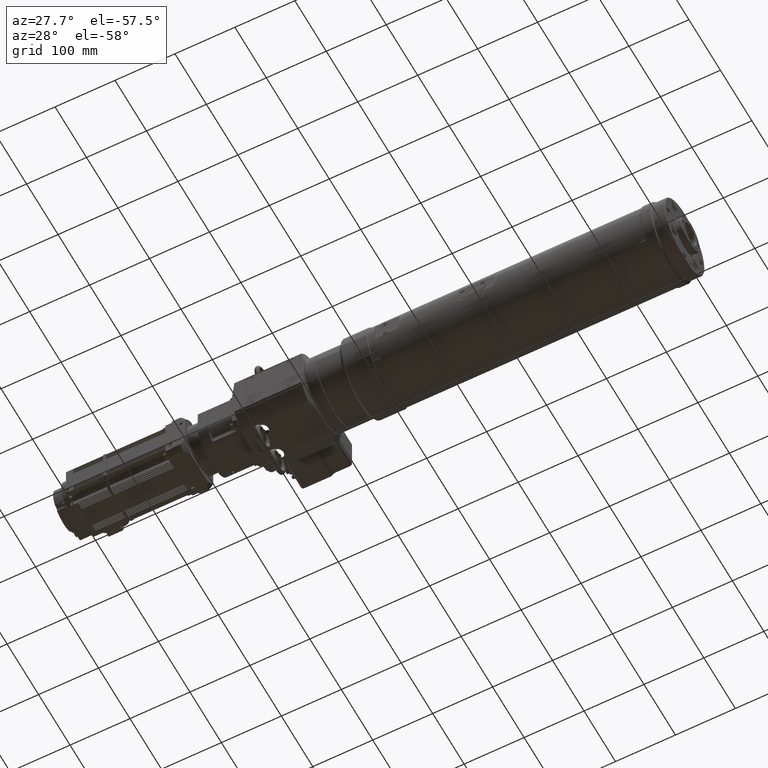
[diagram: clean part render]
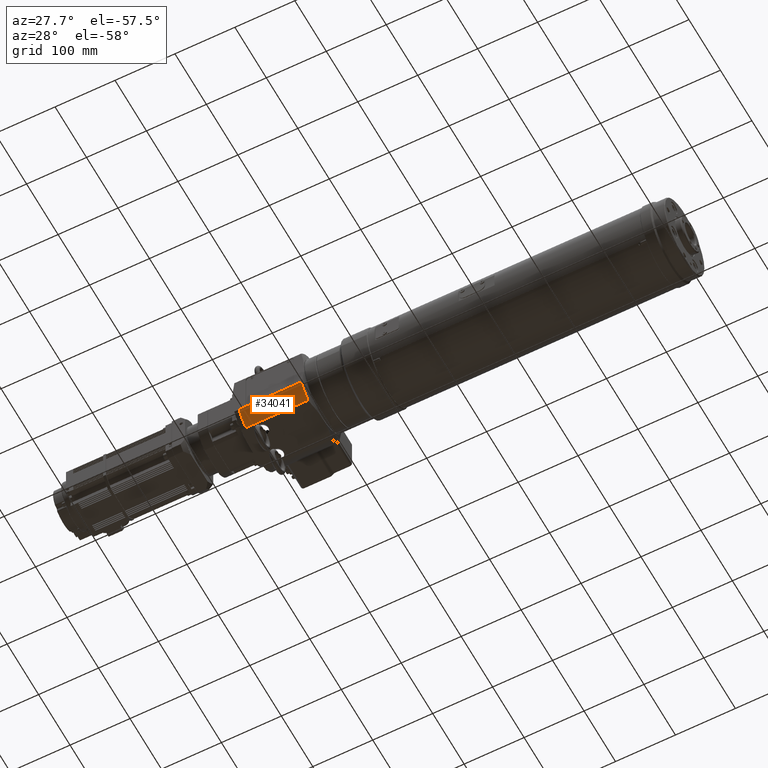
[diagram: same view with one face highlighted and labeled with its STEP entity id]
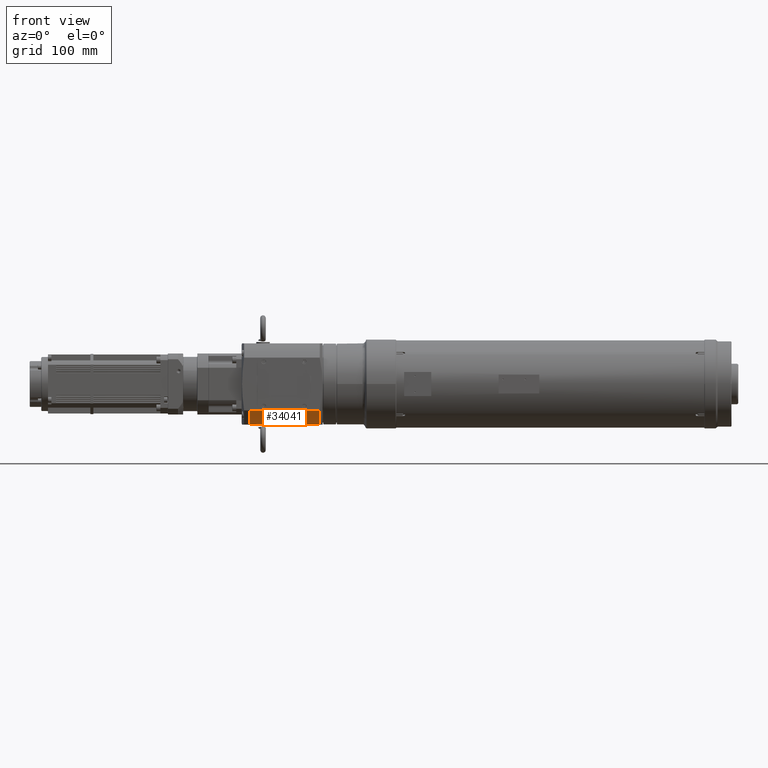
[diagram: same view with one face highlighted and labeled with its STEP entity id]
A machine part, auxiliary view. The second image highlights one B-rep face of the part: STEP entity #34041.
A second angle (front view) of the same face is appended — the face is thin or edge-on in the first view.
In plain terms, the highlighted cylindrical surface (partial cylindrical patch) has radius 71.5 mm, axis along (-1, -0, 0).
Its self-contained STEP definition (entity closure, byte-faithful):
#2684=FACE_OUTER_BOUND('',#4574,.T.);
#4574=EDGE_LOOP('',(#24406,#24407,#24408,#24409));
#6557=CIRCLE('',#36550,71.5000000000078);
#6588=CIRCLE('',#36597,71.5000000000078);
#8399=LINE('',#53532,#11079);
#8400=LINE('',#53535,#11080);
#11079=VECTOR('',#42243,10.);
#11080=VECTOR('',#42246,10.);
#14106=VERTEX_POINT('',#53372);
#14109=VERTEX_POINT('',#53382);
#14158=VERTEX_POINT('',#53531);
#14159=VERTEX_POINT('',#53533);
#17895=EDGE_CURVE('',#14106,#14109,#6557,.T.);
#17936=EDGE_CURVE('',#14106,#14158,#8399,.T.);
#17937=EDGE_CURVE('',#14158,#14159,#6588,.T.);
#17938=EDGE_CURVE('',#14159,#14109,#8400,.T.);
#24406=ORIENTED_EDGE('',*,*,#17936,.T.);
#24407=ORIENTED_EDGE('',*,*,#17937,.T.);
#24408=ORIENTED_EDGE('',*,*,#17938,.T.);
#24409=ORIENTED_EDGE('',*,*,#17895,.F.);
#31329=CYLINDRICAL_SURFACE('',#36596,71.5000000000078);
#34041=ADVANCED_FACE('',(#2684),#31329,.T.);
#36550=AXIS2_PLACEMENT_3D('',#53446,#42139,#42140);
#36596=AXIS2_PLACEMENT_3D('',#53530,#42241,#42242);
#36597=AXIS2_PLACEMENT_3D('',#53534,#42244,#42245);
#42139=DIRECTION('center_axis',(-1.,-1.29444656332744E-16,1.00312885021234E-15));
#42140=DIRECTION('ref_axis',(1.29444656332743E-16,-1.,-1.06883360669053E-15));
#42241=DIRECTION('center_axis',(-1.,-1.29444656332744E-16,1.00312885021234E-15));
#42242=DIRECTION('ref_axis',(-1.00105992818113E-15,1.06883360669053E-15,
-1.));
#42243=DIRECTION('',(1.,1.29444656332744E-16,-1.00312885021234E-15));
#42244=DIRECTION('center_axis',(-1.,-1.29444656332744E-16,1.00312885021234E-15));
#42245=DIRECTION('ref_axis',(1.29444656332743E-16,-1.,-1.06883360669053E-15));
#42246=DIRECTION('',(-1.,-1.29444656332744E-16,1.00312885021234E-15));
#53372=CARTESIAN_POINT('',(-129.000000000002,-38.8876587107155,-60.0000000000003));
#53382=CARTESIAN_POINT('',(-129.000000000002,-59.9999999999997,-38.8876587107161));
#53446=CARTESIAN_POINT('Origin',(-129.000000000002,2.91381156443289E-13,
-2.24533811541971E-13));
#53530=CARTESIAN_POINT('Origin',(-77.0928288470338,2.9810026237439E-13,
-2.76603392458422E-13));
#53531=CARTESIAN_POINT('',(-25.185657694066,-38.8876587107155,-60.0000000000004));
#53532=CARTESIAN_POINT('',(-77.0928288470338,-38.8876587107155,-60.0000000000003));
#53533=CARTESIAN_POINT('',(-25.185657694066,-59.9999999999997,-38.8876587107162));
#53534=CARTESIAN_POINT('Origin',(-25.1856576940659,3.04819368305491E-13,
-3.28672973374874E-13));
#53535=CARTESIAN_POINT('',(-77.0928288470338,-59.9999999999997,-38.8876587107162));